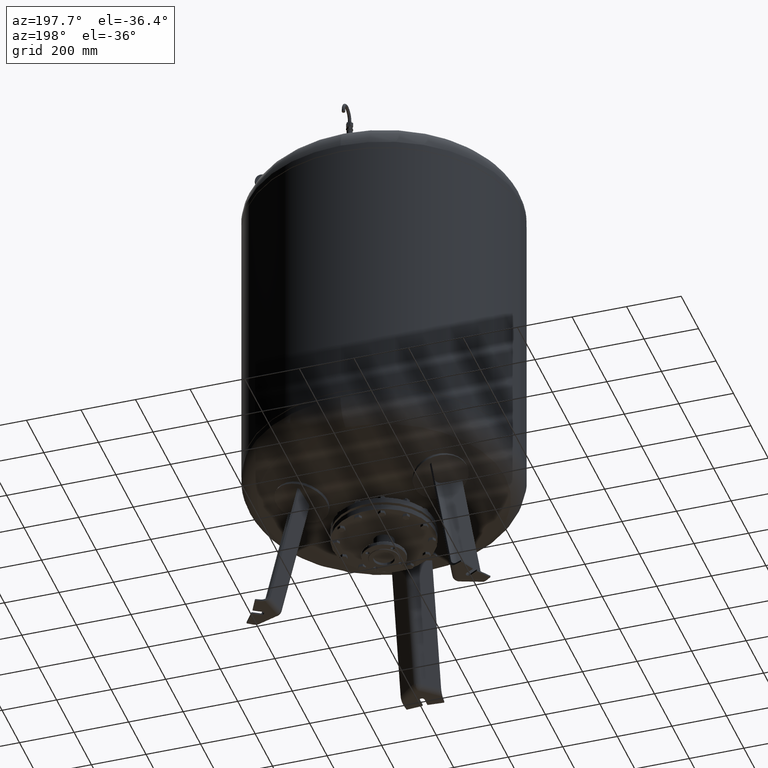
[diagram: clean part render]
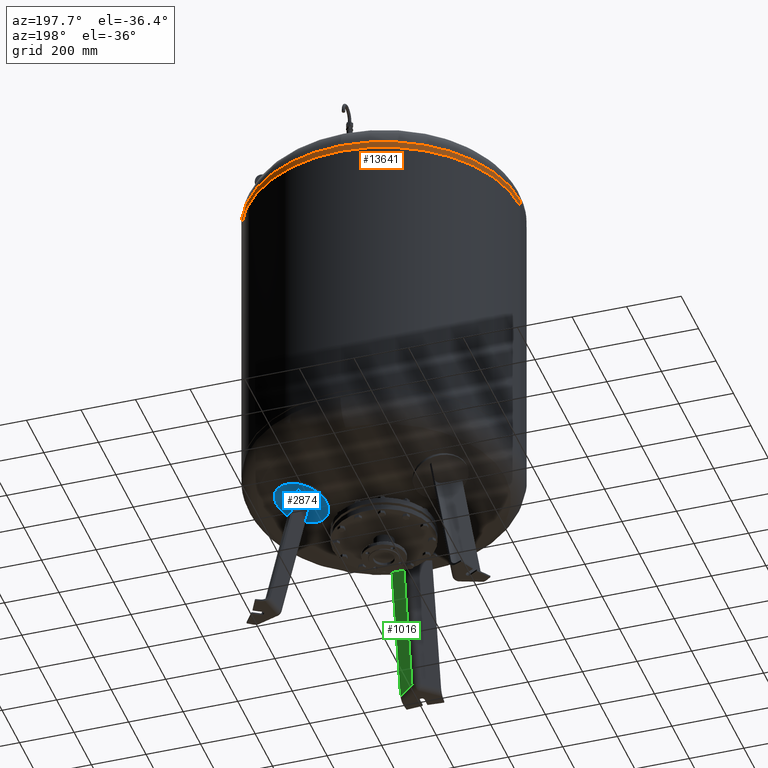
[diagram: same view with three faces highlighted in distinct colors, each labeled with its STEP entity id]
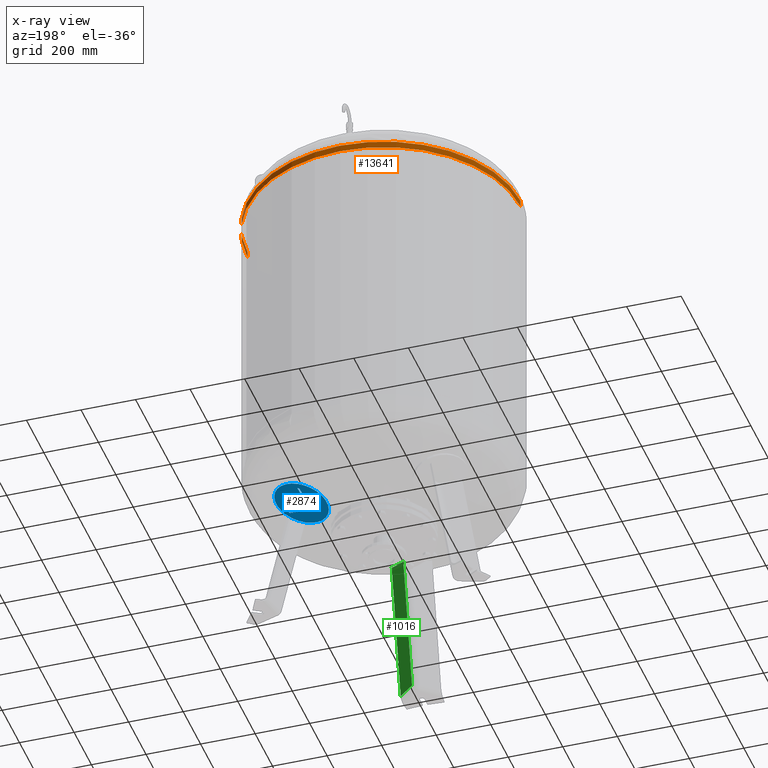
[diagram: x-ray of the same camera — body ghosted, the three highlighted faces saturated]
A machine part, auxiliary view with three faces highlighted in distinct colors.
The next image is the same camera in x-ray (body ghosted, the three faces saturated) — at least one of them is partly hidden behind the body in this view.
Their STEP definitions:

[orange] entity #13641 — the highlighted cylindrical surface (partial cylindrical patch) has radius 500 mm, axis along (0, -0, -1).
#13591=CARTESIAN_POINT('',(2.401136E-015,-3.774564E-014,1734.522322463640200));
#13592=DIRECTION('',(1.168563E-017,-1.836970E-016,-1.0));
#13593=DIRECTION('',(1.0,0.0,0.0));
#13594=AXIS2_PLACEMENT_3D('',#13591,#13592,#13593);
#13595=CYLINDRICAL_SURFACE('',#13594,500.0);
#13596=CARTESIAN_POINT('',(500.0,-3.995410E-014,1722.500000000000000));
#13597=VERTEX_POINT('',#13596);
#13598=CARTESIAN_POINT('',(500.0,-3.553717E-014,1746.544644927280400));
#13599=VERTEX_POINT('',#13598);
#13600=CARTESIAN_POINT('',(500.0,-3.995410E-014,1722.500000000000000));
#13601=DIRECTION('',(0.0,0.0,1.0));
#13602=VECTOR('',#13601,24.044644927280387);
#13603=LINE('',#13600,#13602);
#13604=EDGE_CURVE('',#13597,#13599,#13603,.T.);
#13605=ORIENTED_EDGE('',*,*,#13604,.F.);
#13606=CARTESIAN_POINT('',(-500.0,2.127622E-014,1722.500000000000000));
#13607=VERTEX_POINT('',#13606);
#13608=CARTESIAN_POINT('',(2.541624E-015,-3.995410E-014,1722.500000000000000));
#13609=DIRECTION('',(0.0,0.0,-1.0));
#13610=DIRECTION('',(1.0,0.0,0.0));
#13611=AXIS2_PLACEMENT_3D('',#13608,#13609,#13610);
#13612=CIRCLE('',#13611,500.0);
#13613=EDGE_CURVE('',#13607,#13597,#13612,.T.);
#13614=ORIENTED_EDGE('',*,*,#13613,.F.);
#13615=CARTESIAN_POINT('',(-500.0,2.569315E-014,1746.544644927280400));
#13616=VERTEX_POINT('',#13615);
#13617=CARTESIAN_POINT('',(-500.0,2.127622E-014,1722.500000000000000));
#13618=DIRECTION('',(0.0,0.0,1.0));
#13619=VECTOR('',#13618,24.044644927280387);
#13620=LINE('',#13617,#13619);
#13621=EDGE_CURVE('',#13607,#13616,#13620,.T.);
#13622=ORIENTED_EDGE('',*,*,#13621,.T.);
#13623=CARTESIAN_POINT('',(3.753887E-014,499.999999999999940,1746.544644927280400));
#13624=VERTEX_POINT('',#13623);
#13625=CARTESIAN_POINT('',(2.260647E-015,-3.553717E-014,1746.544644927280400));
#13626=DIRECTION('',(0.0,0.0,-1.0));
#13627=DIRECTION('',(1.0,0.0,0.0));
#13628=AXIS2_PLACEMENT_3D('',#13625,#13626,#13627);
#13629=CIRCLE('',#13628,500.0);
#13630=EDGE_CURVE('',#13616,#13624,#13629,.T.);
#13631=ORIENTED_EDGE('',*,*,#13630,.T.);
#13632=CARTESIAN_POINT('',(2.260647E-015,-3.553717E-014,1746.544644927280400));
#13633=DIRECTION('',(0.0,0.0,-1.0));
#13634=DIRECTION('',(1.0,0.0,0.0));
#13635=AXIS2_PLACEMENT_3D('',#13632,#13633,#13634);
#13636=CIRCLE('',#13635,500.0);
#13637=EDGE_CURVE('',#13624,#13599,#13636,.T.);
#13638=ORIENTED_EDGE('',*,*,#13637,.T.);
#13639=EDGE_LOOP('',(#13605,#13614,#13622,#13631,#13638));
#13640=FACE_OUTER_BOUND('',#13639,.T.);
#13641=ADVANCED_FACE('',(#13640),#13595,.T.);

[blue] entity #2874 — the highlighted spherical surface has radius 1006 mm.
#2086=CARTESIAN_POINT('',(172.796675749824570,99.764207259233828,469.158360530759300));
#2087=VERTEX_POINT('',#2086);
#2096=CARTESIAN_POINT('',(337.524496459090980,194.869858888749040,530.961759405748920));
#2097=VERTEX_POINT('',#2096);
#2098=CARTESIAN_POINT('',(255.160586104457880,147.317033073991470,500.060059968254170));
#2099=DIRECTION('',(0.267616567329818,0.154508497187474,-0.951056516295153));
#2100=DIRECTION('',(-0.823639103546332,-0.475528258147576,-0.309016994374948));
#2101=AXIS2_PLACEMENT_3D('',#2098,#2099,#2100);
#2102=CIRCLE('',#2101,100.0);
#2103=EDGE_CURVE('',#2097,#2087,#2102,.T.);
#2723=CARTESIAN_POINT('',(-12.728276363151167,-7.348673784584975,1452.084259496684100));
#2724=DIRECTION('',(-0.499999999999999,0.866025403784439,-1.922271E-017));
#2725=DIRECTION('',(-0.823639103546332,-0.475528258147576,-0.309016994374948));
#2726=AXIS2_PLACEMENT_3D('',#2723,#2724,#2725);
#2727=SPHERICAL_SURFACE('',#2726,1006.0);
#2728=CARTESIAN_POINT('',(255.160586104457880,147.317033073991470,500.060059968254170));
#2729=DIRECTION('',(0.267616567329818,0.154508497187474,-0.951056516295153));
#2730=DIRECTION('',(-0.823639103546332,-0.475528258147576,-0.309016994374948));
#2731=AXIS2_PLACEMENT_3D('',#2728,#2729,#2730);
#2732=CIRCLE('',#2731,100.0);
#2733=EDGE_CURVE('',#2087,#2097,#2732,.T.);
#2734=ORIENTED_EDGE('',*,*,#2733,.T.);
#2735=ORIENTED_EDGE('',*,*,#2103,.T.);
#2736=EDGE_LOOP('',(#2734,#2735));
#2737=FACE_OUTER_BOUND('',#2736,.T.);
#2738=CARTESIAN_POINT('',(318.185262678157930,99.598423778678892,508.106215259451630));
#2739=VERTEX_POINT('',#2738);
#2740=CARTESIAN_POINT('',(312.584562163770560,95.600291538899370,505.718015578199410));
#2741=VERTEX_POINT('',#2740);
#2742=CARTESIAN_POINT('',(36.204632801566049,-76.862814650949531,1453.703955797395800));
#2743=DIRECTION('',(-0.575511292773578,0.817571931833809,-0.019049623818306));
#2744=DIRECTION('',(0.009563295541659,-0.016564113765950,-0.999817070025078));
#2745=AXIS2_PLACEMENT_3D('',#2742,#2743,#2744);
#2746=CIRCLE('',#2745,1002.400484439319300);
#2747=EDGE_CURVE('',#2739,#2741,#2746,.T.);
#2748=ORIENTED_EDGE('',*,*,#2747,.F.);
#2749=CARTESIAN_POINT('',(250.671269583507810,126.092356515190770,490.392952149244080));
#2750=VERTEX_POINT('',#2749);
#2751=CARTESIAN_POINT('',(5.799916479440014,45.932582055354089,1461.157558058853700));
#2752=DIRECTION('',(-0.324282864533177,-0.932535537409926,-0.158802063077708));
#2753=DIRECTION('',(-0.180056805991956,-0.103955845408880,0.978147600733806));
#2754=AXIS2_PLACEMENT_3D('',#2751,#2752,#2753);
#2755=CIRCLE('',#2754,1004.376169121564000);
#2756=EDGE_CURVE('',#2750,#2739,#2755,.T.);
#2757=ORIENTED_EDGE('',*,*,#2756,.F.);
#2758=CARTESIAN_POINT('',(234.534818756953290,154.041509200620030,490.392952149244080));
#2759=VERTEX_POINT('',#2758);
#2760=CARTESIAN_POINT('',(234.534818756953290,154.041509200620030,490.392952149244080));
#2761=CARTESIAN_POINT('',(234.518724514218580,153.939076163065860,490.371623892671440));
#2762=CARTESIAN_POINT('',(234.503242821862440,153.836344485026530,490.350420493468330));
#2763=CARTESIAN_POINT('',(234.375415184551540,152.950224322039870,490.169148601515130));
#2764=CARTESIAN_POINT('',(234.298485418140390,152.150731179299190,490.016489016976440));
#2765=CARTESIAN_POINT('',(234.222452813682390,150.532984898053260,489.730169035990510));
#2766=CARTESIAN_POINT('',(234.223341923047800,149.714649160971450,489.596492822823280));
#2767=CARTESIAN_POINT('',(234.305452365206550,148.073365051318800,489.351162059827520));
#2768=CARTESIAN_POINT('',(234.386671734574320,147.250416666107980,489.239506937421310));
#2769=CARTESIAN_POINT('',(234.628774753728690,145.614195972106420,489.040364541220580));
#2770=CARTESIAN_POINT('',(234.789767907944310,144.800184674411700,488.952787360993230));
#2771=CARTESIAN_POINT('',(235.188276666275930,143.194353106852870,488.802955942629920));
#2772=CARTESIAN_POINT('',(235.425794399653970,142.402533302654600,488.740702376916890));
#2773=CARTESIAN_POINT('',(235.970899955442830,140.854402461945540,488.641866930361120));
#2774=CARTESIAN_POINT('',(236.278520143095110,140.098012656324670,488.605281330539300));
#2775=CARTESIAN_POINT('',(236.954386690511970,138.632901899743100,488.557093949216380));
#2776=CARTESIAN_POINT('',(237.322637930956150,137.924183142906260,488.545493912186370));
#2777=CARTESIAN_POINT('',(237.714901647204190,137.244762456398860,488.545493912186370));
#2778=CARTESIAN_POINT('',(238.107165363452220,136.565341769891460,488.545493912186370));
#2779=CARTESIAN_POINT('',(238.536808190789400,135.892067462273250,488.557093949216380));
#2780=CARTESIAN_POINT('',(239.467698051638420,134.574194484351380,488.605281330539300));
#2781=CARTESIAN_POINT('',(239.968940744643530,133.929592684317160,488.641866930361120));
#2782=CARTESIAN_POINT('',(241.037108603185320,132.683452004905430,488.740702376916890));
#2783=CARTESIAN_POINT('',(241.604085802151620,132.081845711851600,488.802955942629920));
#2784=CARTESIAN_POINT('',(242.795522354690720,130.933811219726440,488.952787360993230));
#2785=CARTESIAN_POINT('',(243.419980240354080,130.387381409492950,489.040364541220580));
#2786=CARTESIAN_POINT('',(244.715937417980060,129.359603697571600,489.239506937421370));
#2787=CARTESIAN_POINT('',(245.388021940892120,128.877791467814350,489.351162059827520));
#2788=CARTESIAN_POINT('',(246.768360453599660,127.986039684162560,489.596492822823280));
#2789=CARTESIAN_POINT('',(247.476615436054460,127.576101824324500,489.730169035990630));
#2790=CARTESIAN_POINT('',(248.915641114720190,126.833074850678030,490.016489016976440));
#2791=CARTESIAN_POINT('',(249.646487369690790,126.499951411327060,490.169148601515020));
#2792=CARTESIAN_POINT('',(250.477803760298260,126.167593311050710,490.350420493468220));
#2793=CARTESIAN_POINT('',(250.574512849431760,126.129635010904920,490.371623892671440));
#2794=CARTESIAN_POINT('',(250.671269583507810,126.092356515190770,490.392952149244080));
#2795=B_SPLINE_CURVE_WITH_KNOTS('',3,(#2760,#2761,#2762,#2763,#2764,#2765,#2766,#2767,#2768,#2769,#2770,#2771,#2772,#2773,#2774,#2775,#2776,#2777,#2778,#2779,#2780,#2781,#2782,#2783,#2784,#2785,#2786,#2787,#2788,#2789,#2790,#2791,#2792,#2793,#2794),.UNSPECIFIED.,.F.,.U.,(4,2,2,2,2,2,2,2,3,2,2,2,2,2,2,2,4),(-16.784681571035506,-16.475076082417758,-14.121493784929527,-11.767911487441268,-9.414329189953008,-7.060746892464749,-4.707164594976490,-2.353582297488259,0.0,2.353582297488253,4.707164594976506,7.060746892464759,9.414329189953012,11.767911487441264,14.121493784929518,16.475076082417772,16.784681571035524),.UNSPECIFIED.);
#2796=EDGE_CURVE('',#2759,#2750,#2795,.T.);
#2797=ORIENTED_EDGE('',*,*,#2796,.F.);
#2798=CARTESIAN_POINT('',(245.347396508302920,225.757308699770080,508.106215259451630));
#2799=VERTEX_POINT('',#2798);
#2800=CARTESIAN_POINT('',(42.678741161069468,-17.943416016653515,1461.157558058853700));
#2801=DIRECTION('',(-0.969740897595359,0.185430570007245,-0.158802063077709));
#2802=DIRECTION('',(-0.180056805991956,-0.103955845408880,0.978147600733805));
#2803=AXIS2_PLACEMENT_3D('',#2800,#2801,#2802);
#2804=CIRCLE('',#2803,1004.376169121563900);
#2805=EDGE_CURVE('',#2799,#2759,#2804,.T.);
#2806=ORIENTED_EDGE('',*,*,#2805,.F.);
#2807=CARTESIAN_POINT('',(239.084562163770580,222.906025895211880,505.718015578199190));
#2808=VERTEX_POINT('',#2807);
#2809=CARTESIAN_POINT('',(-48.462833693314224,69.785539066318904,1453.703955797395800));
#2810=DIRECTION('',(0.420282416002407,-0.907193365623647,-0.019049623818306));
#2811=DIRECTION('',(0.009563295541659,-0.016564113765950,0.999817070025078));
#2812=AXIS2_PLACEMENT_3D('',#2809,#2810,#2811);
#2813=CIRCLE('',#2812,1002.400484439319300);
#2814=EDGE_CURVE('',#2808,#2799,#2813,.T.);
#2815=ORIENTED_EDGE('',*,*,#2814,.F.);
#2816=CARTESIAN_POINT('',(228.082678938415280,150.316364539537970,488.140371349142640));
#2817=VERTEX_POINT('',#2816);
#2818=CARTESIAN_POINT('',(36.934129287827375,-16.844950790769900,1460.216836450315200));
#2819=DIRECTION('',(0.969740897595359,-0.185430570007245,0.158802063077709));
#2820=DIRECTION('',(0.180056805991956,0.103955845408880,-0.978147600733805));
#2821=AXIS2_PLACEMENT_3D('',#2818,#2819,#2820);
#2822=CIRCLE('',#2821,1004.695639176399000);
#2823=EDGE_CURVE('',#2817,#2808,#2822,.T.);
#2824=ORIENTED_EDGE('',*,*,#2823,.F.);
#2825=CARTESIAN_POINT('',(244.219129764969920,122.367211854108770,488.140371349142640));
#2826=VERTEX_POINT('',#2825);
#2827=CARTESIAN_POINT('',(244.219129764969920,122.367211854108770,488.140371349142640));
#2828=CARTESIAN_POINT('',(244.123183982378410,122.404086547450930,488.119758337632730));
#2829=CARTESIAN_POINT('',(244.027286139814180,122.441628451162490,488.099264993121150));
#2830=CARTESIAN_POINT('',(243.195766521128690,122.773159054032180,487.922527930590210));
#2831=CARTESIAN_POINT('',(242.463969254335130,123.105920005135180,487.773524823873860));
#2832=CARTESIAN_POINT('',(241.023182500839000,123.848292674189150,487.494072222439000));
#2833=CARTESIAN_POINT('',(240.314117387092520,124.257938629457030,487.363607291874300));
#2834=CARTESIAN_POINT('',(238.932307977081390,125.149174637770060,487.124177053163460));
#2835=CARTESIAN_POINT('',(238.259562672585870,125.630762976189840,487.015211181380040));
#2836=CARTESIAN_POINT('',(236.962436455482020,126.658157788553340,486.820870060878350));
#2837=CARTESIAN_POINT('',(236.337470545051990,127.204427788704680,486.735407184319850));
#2838=CARTESIAN_POINT('',(235.145169278032400,128.352202581664470,486.589196233214520));
#2839=CARTESIAN_POINT('',(234.577835387251240,128.953708980501060,486.528448813028320));
#2840=CARTESIAN_POINT('',(233.509099307776320,130.199705807749810,486.432006304194660));
#2841=CARTESIAN_POINT('',(233.007645164326560,130.844263523956560,486.396307595334520));
#2842=CARTESIAN_POINT('',(232.076467259300980,132.162098998258730,486.349288981572390));
#2843=CARTESIAN_POINT('',(231.646747849512370,132.835379892062630,486.337970779564160));
#2844=CARTESIAN_POINT('',(231.254467641075650,133.514829143878730,486.337970779564160));
#2845=CARTESIAN_POINT('',(230.862187432638930,134.194278395694820,486.337970779564160));
#2846=CARTESIAN_POINT('',(230.493968779616380,134.903066767972970,486.349288981572390));
#2847=CARTESIAN_POINT('',(229.818278733375170,136.368408226318990,486.396307595334520));
#2848=CARTESIAN_POINT('',(229.510802448659830,137.124959111482870,486.432006304194540));
#2849=CARTESIAN_POINT('',(228.966105582964990,138.673510119873440,486.528448813028210));
#2850=CARTESIAN_POINT('',(228.728852706424160,139.465588881136090,486.589196233214520));
#2851=CARTESIAN_POINT('',(228.331001211407340,141.072039463819290,486.735407184319850));
#2852=CARTESIAN_POINT('',(228.170400469165940,141.886410818826620,486.820870060878290));
#2853=CARTESIAN_POINT('',(227.929213570494740,143.523452480935130,487.015211181379980));
#2854=CARTESIAN_POINT('',(227.848518487504750,144.346861174114850,487.124177053163520));
#2855=CARTESIAN_POINT('',(227.767590168543730,145.989161230529360,487.363607291874360));
#2856=CARTESIAN_POINT('',(227.767358921597460,146.808052609605060,487.494072222438890));
#2857=CARTESIAN_POINT('',(227.844838707869510,148.426996874095780,487.773524823873860));
#2858=CARTESIAN_POINT('',(227.922557904223590,149.227132373110550,487.922527930590210));
#2859=CARTESIAN_POINT('',(228.051203789349240,150.113014788072180,488.099264993121150));
#2860=CARTESIAN_POINT('',(228.066640468310620,150.214835707756720,488.119758337632730));
#2861=CARTESIAN_POINT('',(228.082678938415280,150.316364539537970,488.140371349142640));
#2862=B_SPLINE_CURVE_WITH_KNOTS('',3,(#2827,#2828,#2829,#2830,#2831,#2832,#2833,#2834,#2835,#2836,#2837,#2838,#2839,#2840,#2841,#2842,#2843,#2844,#2845,#2846,#2847,#2848,#2849,#2850,#2851,#2852,#2853,#2854,#2855,#2856,#2857,#2858,#2859,#2860,#2861),.UNSPECIFIED.,.F.,.U.,(4,2,2,2,2,2,2,2,3,2,2,2,2,2,2,2,4),(-16.782365627384145,-16.475768754341857,-14.122087503721616,-11.768406253101347,-9.414725002481077,-7.061043751860808,-4.707362501240539,-2.353681250620269,0.0,2.353681250620262,4.707362501240525,7.061043751860787,9.414725002481049,11.768406253101311,14.122087503721573,16.475768754341836,16.782365627384028),.UNSPECIFIED.);
#2863=EDGE_CURVE('',#2826,#2817,#2862,.T.);
#2864=ORIENTED_EDGE('',*,*,#2863,.F.);
#2865=CARTESIAN_POINT('',(3.878909333607965,40.408369625302896,1460.216836450315200));
#2866=DIRECTION('',(0.324282864533178,0.932535537409926,0.158802063077709));
#2867=DIRECTION('',(0.180056805991956,0.103955845408880,-0.978147600733806));
#2868=AXIS2_PLACEMENT_3D('',#2865,#2866,#2867);
#2869=CIRCLE('',#2868,1004.695639176398800);
#2870=EDGE_CURVE('',#2741,#2826,#2869,.T.);
#2871=ORIENTED_EDGE('',*,*,#2870,.F.);
#2872=EDGE_LOOP('',(#2748,#2757,#2797,#2806,#2815,#2824,#2864,#2871));
#2873=FACE_BOUND('',#2872,.T.);
#2874=ADVANCED_FACE('',(#2737,#2873),#2727,.T.);

[green] entity #1016 — the highlighted planar face has unit normal (0.6455, 0.7471, -0.1588).
#248=CARTESIAN_POINT('',(16.136450826554551,-371.970961811045530,21.029948423057281));
#249=VERTEX_POINT('',#248);
#290=CARTESIAN_POINT('',(73.500000000000014,-421.529946471096990,21.029948423057284));
#291=VERTEX_POINT('',#290);
#292=CARTESIAN_POINT('',(16.136450826554551,-371.970961811045530,21.029948423057281));
#293=DIRECTION('',(0.756707249513243,-0.653753882232529,4.686537E-017));
#294=VECTOR('',#293,75.806792138366546);
#295=LINE('',#292,#294);
#296=EDGE_CURVE('',#249,#291,#295,.T.);
#851=CARTESIAN_POINT('',(73.500000000000128,-318.506317434111050,505.718015578199190));
#852=VERTEX_POINT('',#851);
#860=CARTESIAN_POINT('',(16.136450826554636,-272.683576393646550,488.140371349142640));
#861=VERTEX_POINT('',#860);
#862=CARTESIAN_POINT('',(-33.055219954219147,-23.563418834532399,1460.216836450315200));
#863=DIRECTION('',(-0.645458033062182,-0.747104967402682,0.158802063077709));
#864=DIRECTION('',(-5.092368E-017,-0.207911690817760,-0.978147600733805));
#865=AXIS2_PLACEMENT_3D('',#862,#863,#864);
#866=CIRCLE('',#865,1004.695639176399000);
#867=EDGE_CURVE('',#861,#852,#866,.T.);
#986=CARTESIAN_POINT('',(73.500000000000014,-421.529946471096990,21.029948423057284));
#987=DIRECTION('',(2.294311E-016,0.207911690817760,0.978147600733806));
#988=VECTOR('',#987,495.516286899369050);
#989=LINE('',#986,#988);
#990=EDGE_CURVE('',#291,#852,#989,.T.);
#1000=CARTESIAN_POINT('',(1.892769E-014,-372.646449924192040,-47.735293817669401));
#1001=DIRECTION('',(0.645458033062182,0.747104967402682,-0.158802063077709));
#1002=DIRECTION('',(-1.655020E-016,-0.207911690817760,-0.978147600733806));
#1003=AXIS2_PLACEMENT_3D('',#1000,#1001,#1002);
#1004=PLANE('',#1003);
#1005=CARTESIAN_POINT('',(16.136450826554636,-272.683576393646550,488.140371349142640));
#1006=DIRECTION('',(-1.785485E-016,-0.207911690817760,-0.978147600733805));
#1007=VECTOR('',#1006,477.545947641909610);
#1008=LINE('',#1005,#1007);
#1009=EDGE_CURVE('',#861,#249,#1008,.T.);
#1010=ORIENTED_EDGE('',*,*,#1009,.F.);
#1011=ORIENTED_EDGE('',*,*,#867,.T.);
#1012=ORIENTED_EDGE('',*,*,#990,.F.);
#1013=ORIENTED_EDGE('',*,*,#296,.F.);
#1014=EDGE_LOOP('',(#1010,#1011,#1012,#1013));
#1015=FACE_OUTER_BOUND('',#1014,.T.);
#1016=ADVANCED_FACE('',(#1015),#1004,.T.);